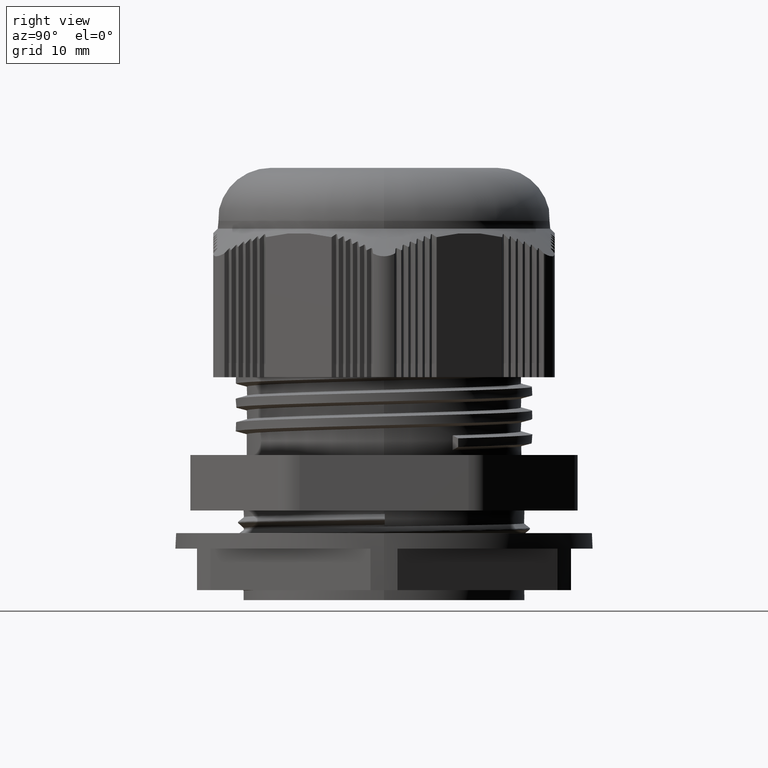
[diagram: clean part render]
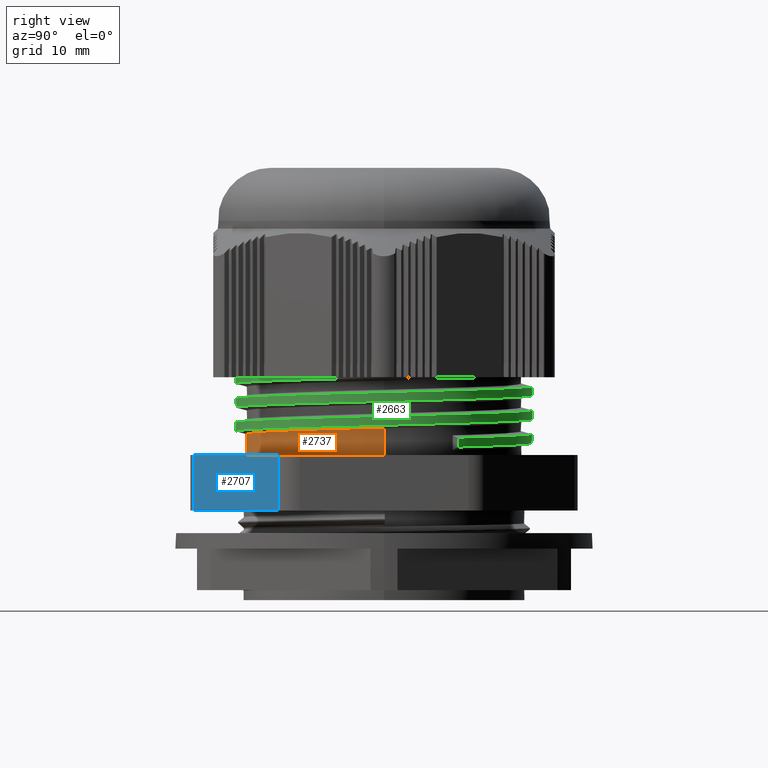
[diagram: same view with three faces highlighted in distinct colors, each labeled with its STEP entity id]
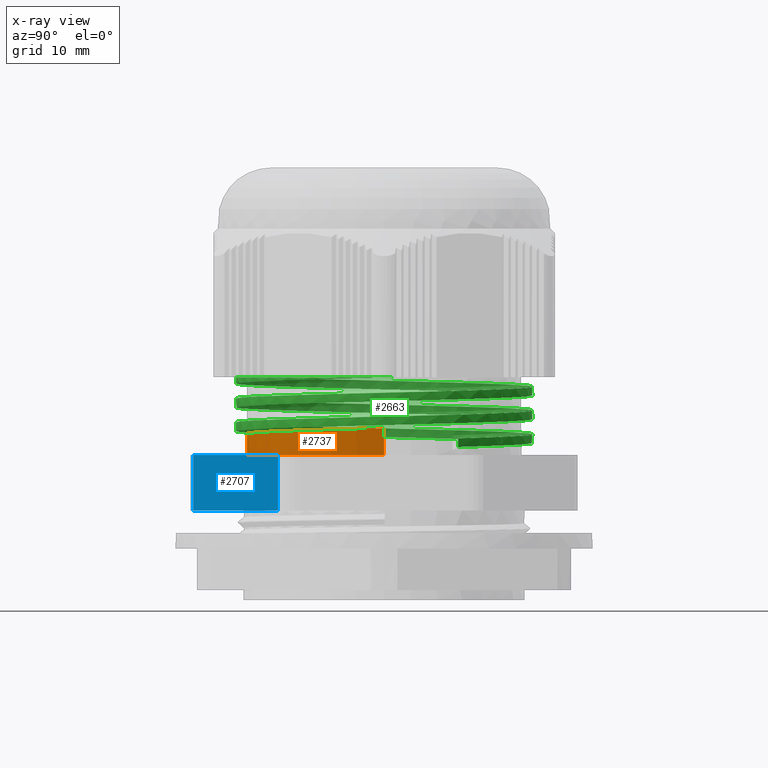
[diagram: x-ray of the same camera — body ghosted, the three highlighted faces saturated]
A machine part, right view with three faces highlighted in distinct colors.
The next image is the same camera in x-ray (body ghosted, the three faces saturated) — at least one of them is partly hidden behind the body in this view.
Their STEP definitions:

[orange] entity #2737 — the highlighted cylindrical surface (partial cylindrical patch) has radius 16.8413 mm, axis along (0, 0, -1).
#724 = EDGE_CURVE ( 'NONE', #21058, #21067, #8386, .T. ) ;
#733 = EDGE_CURVE ( 'NONE', #20887, #21045, #8423, .T. ) ;
#2575 = EDGE_CURVE ( 'NONE', #21058, #20887, #14877, .T. ) ;
#2696 = EDGE_CURVE ( 'NONE', #21067, #21045, #16213, .T. ) ;
#2737 = ADVANCED_FACE ( 'NONE', ( #16335 ), #16319, .T. ) ;
#3168 = EDGE_LOOP ( 'NONE', ( #19341, #19349, #19283, #19373 ) ) ;
#8352 = CARTESIAN_POINT ( 'NONE',  ( -654.4406167030414300, 330.9994562443066000, 0.3723463685303072300 ) ) ;
#8375 = DIRECTION ( 'NONE',  ( 0.0000000000000000000, 0.0000000000000000000, -1.000000000000000000 ) ) ;
#8386 = LINE ( 'NONE', #8352, #22763 ) ;
#8399 = DIRECTION ( 'NONE',  ( 0.0000000000000000000, 0.0000000000000000000, -1.000000000000000000 ) ) ;
#8401 = CARTESIAN_POINT ( 'NONE',  ( -688.1232154737675700, 330.9994562443066000, 0.3723463685303072300 ) ) ;
#8423 = LINE ( 'NONE', #8401, #22813 ) ;
#14877 =( BOUNDED_CURVE ( )  B_SPLINE_CURVE ( 2, ( #15925, #15886, #15905, #15932, #15916, #15924, #15912, #15899, #15917, #15910, #15933, #15887, #15934 ),
 .UNSPECIFIED., .F., .F. ) 
 B_SPLINE_CURVE_WITH_KNOTS ( ( 3, 2, 2, 2, 2, 2, 3 ),
 ( 0.0000000000000000000, 0.001788247828376605600, 0.01241998737011210600, 0.02305172691184761600, 0.03368346645358311800, 0.04431520599531861600, 0.05315869770868329700 ),
 .UNSPECIFIED. ) 
 CURVE ( )  GEOMETRIC_REPRESENTATION_ITEM ( )  RATIONAL_B_SPLINE_CURVE ( ( 0.9863048215266263500, 0.9917677555864871100, 1.000000000000000000, 0.9510565162951540900, 1.000000000000000000, 0.9510565162951540900, 1.000000000000000000, 0.9510565162951540900, 1.000000000000000000, 0.9510565162951540900, 1.000000000000000000, 0.9592887607086403300, 0.9863048215266616600 ) ) 
 REPRESENTATION_ITEM ( '' )  );
#15886 = CARTESIAN_POINT ( 'NONE',  ( -654.4406167030410900, 330.1168411432821000, 21.44927061568271000 ) ) ;
#15887 = CARTESIAN_POINT ( 'NONE',  ( -688.1232154737675700, 326.4868436745075000, 20.13711571569953000 ) ) ;
#15899 = CARTESIAN_POINT ( 'NONE',  ( -673.1329050822452000, 313.3884723561546900, 20.69560379291174000 ) ) ;
#15905 = CARTESIAN_POINT ( 'NONE',  ( -654.5328751032087700, 329.2390611001243900, 21.42571792811533300 ) ) ;
#15910 = CARTESIAN_POINT ( 'NONE',  ( -683.1308742486384100, 317.8398550238632700, 20.40355813883030200 ) ) ;
#15912 = CARTESIAN_POINT ( 'NONE',  ( -667.7804130576256500, 314.5261796572739900, 20.84162661995245000 ) ) ;
#15916 = CARTESIAN_POINT ( 'NONE',  ( -658.7663915958562500, 319.7304273747074600, 21.13367227403389800 ) ) ;
#15917 = CARTESIAN_POINT ( 'NONE',  ( -678.1318896654416900, 315.6141636900089200, 20.54958096587102300 ) ) ;
#15924 = CARTESIAN_POINT ( 'NONE',  ( -662.4279210330062100, 315.6638869583934500, 20.98764944699317400 ) ) ;
#15925 = CARTESIAN_POINT ( 'NONE',  ( -654.4406167030414300, 330.9994562443109200, 21.47349420748840700 ) ) ;
#15932 = CARTESIAN_POINT ( 'NONE',  ( -655.1048621587061700, 323.7969677910218100, 21.27969510107460800 ) ) ;
#15933 = CARTESIAN_POINT ( 'NONE',  ( -685.8669091888682500, 322.5788065516250600, 20.25753531178957100 ) ) ;
#15934 = CARTESIAN_POINT ( 'NONE',  ( -688.1232154737674600, 330.9994562443063700, 20.01326593708103700 ) ) ;
#16188 = AXIS2_PLACEMENT_3D ( 'NONE', #16305, #16300, #16302 ) ;
#16202 = AXIS2_PLACEMENT_3D ( 'NONE', #17160, #17175, #17135 ) ;
#16213 = CIRCLE ( 'NONE', #16202, 16.84129938536305100 ) ;
#16300 = DIRECTION ( 'NONE',  ( 0.0000000000000000000, 0.0000000000000000000, -1.000000000000000000 ) ) ;
#16302 = DIRECTION ( 'NONE',  ( -1.000000000000000000, 0.0000000000000000000, 0.0000000000000000000 ) ) ;
#16305 = CARTESIAN_POINT ( 'NONE',  ( -671.2819160884045000, 330.9994562443066000, 0.3723463685303072300 ) ) ;
#16319 = CYLINDRICAL_SURFACE ( 'NONE', #16188, 16.84129938536305100 ) ;
#16335 = FACE_OUTER_BOUND ( 'NONE', #3168, .T. ) ;
#17135 = DIRECTION ( 'NONE',  ( -1.000000000000000000, 0.0000000000000000000, 0.0000000000000000000 ) ) ;
#17160 = CARTESIAN_POINT ( 'NONE',  ( -671.2819160884045000, 330.9994562443066000, 18.18713126749812800 ) ) ;
#17175 = DIRECTION ( 'NONE',  ( 0.0000000000000000000, 0.0000000000000000000, -1.000000000000000000 ) ) ;
#18387 = CARTESIAN_POINT ( 'NONE',  ( -688.1232154737675700, 330.9994562443063700, 20.01326593708103700 ) ) ;
#19283 = ORIENTED_EDGE ( 'NONE', *, *, #733, .T. ) ;
#19341 = ORIENTED_EDGE ( 'NONE', *, *, #724, .F. ) ;
#19349 = ORIENTED_EDGE ( 'NONE', *, *, #2575, .T. ) ;
#19373 = ORIENTED_EDGE ( 'NONE', *, *, #2696, .F. ) ;
#20128 = CARTESIAN_POINT ( 'NONE',  ( -688.1232154737675700, 330.9994562443066000, 18.18713126749812800 ) ) ;
#20190 = CARTESIAN_POINT ( 'NONE',  ( -654.4406167030414300, 330.9994562443109200, 21.47349420748840700 ) ) ;
#20223 = CARTESIAN_POINT ( 'NONE',  ( -654.4406167030414300, 330.9994562443066000, 18.18713126749812800 ) ) ;
#20887 = VERTEX_POINT ( 'NONE', #18387 ) ;
#21045 = VERTEX_POINT ( 'NONE', #20128 ) ;
#21058 = VERTEX_POINT ( 'NONE', #20190 ) ;
#21067 = VERTEX_POINT ( 'NONE', #20223 ) ;
#22763 = VECTOR ( 'NONE', #8375, 1000.000000000000000 ) ;
#22813 = VECTOR ( 'NONE', #8399, 1000.000000000000000 ) ;

[blue] entity #2707 — the highlighted planar face has unit normal (0.5, -0.866, 0).
#605 = EDGE_CURVE ( 'NONE', #3395, #23344, #7986, .T. ) ;
#618 = EDGE_CURVE ( 'NONE', #23344, #23377, #7980, .T. ) ;
#699 = EDGE_CURVE ( 'NONE', #23377, #3413, #8313, .T. ) ;
#2671 = EDGE_CURVE ( 'NONE', #3395, #3413, #17044, .T. ) ;
#2707 = ADVANCED_FACE ( 'NONE', ( #17188 ), #17190, .T. ) ;
#3149 = EDGE_LOOP ( 'NONE', ( #18887, #18832, #18815, #18779 ) ) ;
#3395 = VERTEX_POINT ( 'NONE', #17713 ) ;
#3413 = VERTEX_POINT ( 'NONE', #17721 ) ;
#7964 = CARTESIAN_POINT ( 'NONE',  ( -651.8017514703900600, 317.9981757370482600, 11.37273267226454500 ) ) ;
#7967 = DIRECTION ( 'NONE',  ( -0.0000000000000000000, -0.0000000000000000000, -1.000000000000000000 ) ) ;
#7980 = LINE ( 'NONE', #7964, #22704 ) ;
#7983 = DIRECTION ( 'NONE',  ( -0.8660254037844352700, -0.5000000000000057700, 0.0000000000000000000 ) ) ;
#7986 = LINE ( 'NONE', #7997, #22718 ) ;
#7997 = CARTESIAN_POINT ( 'NONE',  ( -651.8017514703899500, 317.9981757370480300, 11.37273267226454500 ) ) ;
#8312 = CARTESIAN_POINT ( 'NONE',  ( -669.7625591963984600, 307.6284985615739600, 11.37273267226454500 ) ) ;
#8313 = LINE ( 'NONE', #8312, #22768 ) ;
#8332 = DIRECTION ( 'NONE',  ( 0.0000000000000000000, 0.0000000000000000000, 1.000000000000000000 ) ) ;
#16137 = VECTOR ( 'NONE', #17043, 1000.000000000000000 ) ;
#16225 = AXIS2_PLACEMENT_3D ( 'NONE', #17192, #17201, #17202 ) ;
#17043 = DIRECTION ( 'NONE',  ( -0.8660254037844387100, -0.4999999999999998900, -0.0000000000000000000 ) ) ;
#17044 = LINE ( 'NONE', #17078, #16137 ) ;
#17078 = CARTESIAN_POINT ( 'NONE',  ( -669.7625591963985700, 307.6284985615743600, 18.18713126749812800 ) ) ;
#17188 = FACE_OUTER_BOUND ( 'NONE', #3149, .T. ) ;
#17190 = PLANE ( 'NONE',  #16225 ) ;
#17192 = CARTESIAN_POINT ( 'NONE',  ( -669.7625591963985700, 307.6284985615743600, 11.37273267226454500 ) ) ;
#17201 = DIRECTION ( 'NONE',  ( 0.4999999999999998900, -0.8660254037844387100, 0.0000000000000000000 ) ) ;
#17202 = DIRECTION ( 'NONE',  ( 0.8660254037844387100, 0.4999999999999998900, 0.0000000000000000000 ) ) ;
#17713 = CARTESIAN_POINT ( 'NONE',  ( -651.8017514703900600, 317.9981757370482600, 18.18713126749812800 ) ) ;
#17721 = CARTESIAN_POINT ( 'NONE',  ( -669.7625591963985700, 307.6284985615741300, 18.18713126749812800 ) ) ;
#18779 = ORIENTED_EDGE ( 'NONE', *, *, #618, .F. ) ;
#18815 = ORIENTED_EDGE ( 'NONE', *, *, #699, .F. ) ;
#18832 = ORIENTED_EDGE ( 'NONE', *, *, #2671, .T. ) ;
#18887 = ORIENTED_EDGE ( 'NONE', *, *, #605, .F. ) ;
#20456 = CARTESIAN_POINT ( 'NONE',  ( -651.8017514703899500, 317.9981757370481400, 11.37273267226454500 ) ) ;
#20459 = CARTESIAN_POINT ( 'NONE',  ( -669.7625591963984600, 307.6284985615740200, 11.37273267226454500 ) ) ;
#22704 = VECTOR ( 'NONE', #7983, 1000.000000000000300 ) ;
#22718 = VECTOR ( 'NONE', #7967, 1000.000000000000000 ) ;
#22768 = VECTOR ( 'NONE', #8332, 1000.000000000000000 ) ;
#23344 = VERTEX_POINT ( 'NONE', #20456 ) ;
#23377 = VERTEX_POINT ( 'NONE', #20459 ) ;

[green] entity #2663 — the highlighted face is a freeform B-spline surface patch.
#2559 = EDGE_CURVE ( 'NONE', #3419, #3391, #14874, .T. ) ;
#2594 = EDGE_CURVE ( 'NONE', #3419, #3378, #5626, .T. ) ;
#2600 = EDGE_CURVE ( 'NONE', #3379, #3391, #16432, .T. ) ;
#2634 = EDGE_CURVE ( 'NONE', #3379, #3378, #14876, .T. ) ;
#2663 = ADVANCED_FACE ( 'NONE', ( #16686 ), #14873, .F. ) ;
#3077 = EDGE_LOOP ( 'NONE', ( #19332, #19394, #19393, #19400 ) ) ;
#3378 = VERTEX_POINT ( 'NONE', #17736 ) ;
#3379 = VERTEX_POINT ( 'NONE', #17696 ) ;
#3391 = VERTEX_POINT ( 'NONE', #17714 ) ;
#3419 = VERTEX_POINT ( 'NONE', #17708 ) ;
#5626 = B_SPLINE_CURVE_WITH_KNOTS ( 'NONE', 3,
 ( #16372, #16363, #16351, #16360, #16344, #16358, #16379, #16394, #16367, #16345, #16368, #16346, #16357, #16395, #16361, #16369, #16347, #16378, #16359, #16380, #16370, #16355, #16349, #16371, #16377, #16373, #16348, #16387, #16362, #16353, #16389, #16374, #16396, #16375, #16376, #16381, #16382, #16364, #16390, #16350, #16386, #16352 ),
 .UNSPECIFIED., .F., .F.,
 ( 4, 2, 2, 2, 2, 2, 2, 2, 2, 2, 2, 2, 2, 2, 2, 2, 2, 2, 2, 2, 4 ),
 ( 0.0000000000000000000, 0.001319045719818916300, 0.002638091439637832600, 0.005276182879275292300, 0.007914274318912752800, 0.009233320038731661700, 0.01055236575855057200, 0.01319045719818839200, 0.01582854863782621300, 0.01846664007746403500, 0.01978568579728294500, 0.02110473151710185200, 0.02638091439637724900, 0.02769996011619609700, 0.02901900583601494900, 0.03033805155583380000, 0.03165709727565265600, 0.03429518871529019900, 0.03561423443510897800, 0.03693328015492775000, 0.04220946303420264300 ),
 .UNSPECIFIED. ) ;
#14873 =( BOUNDED_SURFACE ( )  B_SPLINE_SURFACE ( 1, 2, ( 
 ( #16664, #16690, #16687, #16710, #16712, #16667, #16691, #16701, #16683, #16703, #16668, #16677, #16675, #16669, #16704, #16707, #16678, #16679, #16682, #16680, #16759, #16718, #16721, #16720, #16769, #16776, #16774, #16750, #16754, #16746, #16742, #16731, #16773, #16763, #16755, #16764, #16771, #16751, #16744, #16743, #16772, #16756, #16747, #16725, #16726, #16736, #16760, #16761, #16752, #16727, #16745, #16757, #16748, #16762, #16741, #16766, #16737, #16716, #16775, #16732, #16753, #16713, #16765, #16749, #16767, #16758, #16714, #16768, #16770, #16715, #16738, #16717, #16722, #16719, #16723, #16739, #16740 ),
 ( #16724, #16733, #16728, #16729, #16730, #16734, #16735, #16836, #16801, #16806, #16823, #16782, #16785, #16784, #16833, #16840, #16838, #16814, #16818, #16810, #16807, #16795, #16837, #16827, #16819, #16828, #16835, #16815, #16808, #16809, #16839, #16820, #16811, #16789, #16790, #16800, #16824, #16825, #16816, #16791, #16812, #16821, #16781, #16783, #16792, #16796, #16817, #16786, #16793, #16813, #16777, #16822, #16826, #16829, #16794, #16831, #16830, #16787, #16797, #16788, #16805, #16832, #16834, #16780, #16778, #16798, #16799, #16779, #16802, #16803, #16804, #16867, #16879, #16870, #16856, #16893, #16841 ) ),
 .UNSPECIFIED., .F., .F., .T. ) 
 B_SPLINE_SURFACE_WITH_KNOTS ( ( 2, 2 ),
 ( 3, 2, 2, 2, 2, 2, 2, 2, 2, 2, 2, 2, 2, 2, 2, 2, 2, 2, 2, 2, 2, 2, 2, 2, 2, 2, 2, 2, 2, 2, 2, 2, 2, 2, 2, 2, 2, 2, 3 ),
 ( 0.0000000000000000000, 1.000000000000000000 ),
 ( 0.0000000000000000000, 0.02500000000000000100, 0.05000000000000000300, 0.07499999999999999700, 0.1000000000000000100, 0.1250000000000000000, 0.1499999999999999900, 0.1749999999999999900, 0.2000000000000000100, 0.2250000000000000100, 0.2500000000000000000, 0.2750000000000000200, 0.2999999999999999900, 0.3250000000000000100, 0.3499999999999999800, 0.3750000000000000000, 0.4000000000000000200, 0.4249999999999999900, 0.4500000000000000100, 0.4749999999999999800, 0.5000000000000000000, 0.5250000000000000200, 0.5500000000000000400, 0.5749999999999999600, 0.5999999999999999800, 0.6250000000000000000, 0.6500000000000000200, 0.6750000000000000400, 0.6999999999999999600, 0.7249999999999999800, 0.7500000000000000000, 0.7750000000000000200, 0.8000000000000000400, 0.8249999999999999600, 0.8499999999999999800, 0.8750000000000000000, 0.9000000000000000200, 0.9250000000000000400, 0.9499999999999999600 ),
 .UNSPECIFIED. ) 
 GEOMETRIC_REPRESENTATION_ITEM ( )  RATIONAL_B_SPLINE_SURFACE ( (
 ( 1.000000000000000000, 0.9510565162951539800, 1.000000000000000000, 0.9510565162951539800, 1.000000000000000000, 0.9510565162951539800, 1.000000000000000000, 0.9510565162951539800, 1.000000000000000000, 0.9510565162951539800, 1.000000000000000000, 0.9510565162951539800, 1.000000000000000000, 0.9510565162951539800, 1.000000000000000000, 0.9510565162951539800, 1.000000000000000000, 0.9510565162951539800, 1.000000000000000000, 0.9510565162951539800, 1.000000000000000000, 0.9510565162951539800, 1.000000000000000000, 0.9510565162951539800, 1.000000000000000000, 0.9510565162951539800, 1.000000000000000000, 0.9510565162951539800, 1.000000000000000000, 0.9510565162951539800, 1.000000000000000000, 0.9510565162951539800, 1.000000000000000000, 0.9510565162951539800, 1.000000000000000000, 0.9510565162951539800, 1.000000000000000000, 0.9510565162951539800, 1.000000000000000000, 0.9510565162951539800, 1.000000000000000000, 0.9510565162951539800, 1.000000000000000000, 0.9510565162951539800, 1.000000000000000000, 0.9510565162951539800, 1.000000000000000000, 0.9510565162951539800, 1.000000000000000000, 0.9510565162951539800, 1.000000000000000000, 0.9510565162951539800, 1.000000000000000000, 0.9510565162951539800, 1.000000000000000000, 0.9510565162951539800, 1.000000000000000000, 0.9510565162951539800, 1.000000000000000000, 0.9510565162951539800, 1.000000000000000000, 0.9510565162951539800, 1.000000000000000000, 0.9510565162951539800, 1.000000000000000000, 0.9510565162951539800, 1.000000000000000000, 0.9510565162951539800, 1.000000000000000000, 0.9510565162951539800, 1.000000000000000000, 0.9510565162951539800, 1.000000000000000000, 0.9510565162951539800, 1.000000000000000000, 0.9510565162951539800, 1.000000000000000000),
 ( 1.000000000000000000, 0.9510565162951539800, 1.000000000000000000, 0.9510565162951539800, 1.000000000000000000, 0.9510565162951539800, 1.000000000000000000, 0.9510565162951539800, 1.000000000000000000, 0.9510565162951539800, 1.000000000000000000, 0.9510565162951539800, 1.000000000000000000, 0.9510565162951539800, 1.000000000000000000, 0.9510565162951539800, 1.000000000000000000, 0.9510565162951539800, 1.000000000000000000, 0.9510565162951539800, 1.000000000000000000, 0.9510565162951539800, 1.000000000000000000, 0.9510565162951539800, 1.000000000000000000, 0.9510565162951539800, 1.000000000000000000, 0.9510565162951539800, 1.000000000000000000, 0.9510565162951539800, 1.000000000000000000, 0.9510565162951539800, 1.000000000000000000, 0.9510565162951539800, 1.000000000000000000, 0.9510565162951539800, 1.000000000000000000, 0.9510565162951539800, 1.000000000000000000, 0.9510565162951539800, 1.000000000000000000, 0.9510565162951539800, 1.000000000000000000, 0.9510565162951539800, 1.000000000000000000, 0.9510565162951539800, 1.000000000000000000, 0.9510565162951539800, 1.000000000000000000, 0.9510565162951539800, 1.000000000000000000, 0.9510565162951539800, 1.000000000000000000, 0.9510565162951539800, 1.000000000000000000, 0.9510565162951539800, 1.000000000000000000, 0.9510565162951539800, 1.000000000000000000, 0.9510565162951539800, 1.000000000000000000, 0.9510565162951539800, 1.000000000000000000, 0.9510565162951539800, 1.000000000000000000, 0.9510565162951539800, 1.000000000000000000, 0.9510565162951539800, 1.000000000000000000, 0.9510565162951539800, 1.000000000000000000, 0.9510565162951539800, 1.000000000000000000, 0.9510565162951539800, 1.000000000000000000, 0.9510565162951539800, 1.000000000000000000) ) ) 
 REPRESENTATION_ITEM ( '' )  SURFACE ( )  );
#14874 =( BOUNDED_CURVE ( )  B_SPLINE_CURVE ( 2, ( #15813, #15826, #15811, #15780, #15808, #15831, #15836, #15801, #15820, #15789, #15786, #15835, #15803, #15804, #15805, #15812, #15795, #15809, #15797, #15827, #15790, #15824, #15799, #15828, #15784, #15816, #15793, #15817, #15814, #15791, #15818, #15785, #15819, #15821, #15800, #15825, #15832, #15781, #15792, #15829, #15794, #15822, #15833, #15834, #15837, #15798, #15782, #15783, #15802, #15853, #15850, #15883, #15872 ),
 .UNSPECIFIED., .F., .T. ) 
 B_SPLINE_CURVE_WITH_KNOTS ( ( 3, 2, 2, 2, 2, 2, 2, 2, 2, 2, 2, 2, 2, 2, 2, 2, 2, 2, 2, 2, 2, 2, 2, 2, 2, 2, 3 ),
 ( 0.3087358529763428200, 0.3249999999999999600, 0.3499999999999999800, 0.3750000000000000000, 0.3999999999999999100, 0.4249999999999999300, 0.4499999999999999600, 0.4749999999999999800, 0.4999999999999999400, 0.5249999999999999100, 0.5499999999999999300, 0.5749999999999999600, 0.5999999999999999800, 0.6250000000000000000, 0.6499999999999999100, 0.6749999999999999300, 0.6999999999999999600, 0.7249999999999999800, 0.7500000000000000000, 0.7749999999999999100, 0.7999999999999999300, 0.8249999999999999600, 0.8500000000000000900, 0.8750000000000000000, 0.8999999999999999100, 0.9250000000000000400, 0.9499999999999999600 ),
 .UNSPECIFIED. ) 
 CURVE ( )  GEOMETRIC_REPRESENTATION_ITEM ( )  RATIONAL_B_SPLINE_CURVE ( ( 0.9777473639707057200, 0.9681590394069766700, 1.000000000000000000, 0.9510565162951539800, 1.000000000000000000, 0.9510565162951539800, 1.000000000000000000, 0.9510565162951539800, 1.000000000000000000, 0.9510565162951539800, 1.000000000000000000, 0.9510565162951539800, 1.000000000000000000, 0.9510565162951539800, 1.000000000000000000, 0.9510565162951539800, 1.000000000000000000, 0.9510565162951539800, 1.000000000000000000, 0.9510565162951539800, 1.000000000000000000, 0.9510565162951539800, 1.000000000000000000, 0.9510565162951539800, 1.000000000000000000, 0.9510565162951539800, 1.000000000000000000, 0.9510565162951539800, 1.000000000000000000, 0.9510565162951539800, 1.000000000000000000, 0.9510565162951539800, 1.000000000000000000, 0.9510565162951539800, 1.000000000000000000, 0.9510565162951539800, 1.000000000000000000, 0.9510565162951539800, 1.000000000000000000, 0.9510565162951539800, 1.000000000000000000, 0.9510565162951539800, 1.000000000000000000, 0.9510565162951539800, 1.000000000000000000, 0.9510565162951539800, 1.000000000000000000, 0.9510565162951539800, 1.000000000000000000, 0.9510565162951539800, 1.000000000000000000, 0.9510565162951539800, 1.000000000000000000 ) ) 
 REPRESENTATION_ITEM ( '' )  );
#14876 =( BOUNDED_CURVE ( )  B_SPLINE_CURVE ( 2, ( #16546, #16547, #16497, #16520, #16521, #16519, #16522, #16548, #16516, #16507, #16506, #16525, #16526, #16500, #16495, #16527, #16528, #16501, #16502, #16504, #16505, #16533, #16512, #16569, #16586, #16559, #16562, #16580, #16605, #16590, #16581, #16591, #16563, #16600, #16582, #16560, #16564, #16557, #16576, #16584, #16577, #16595, #16602, #16551, #16565, #16594, #16566, #16575, #16596, #16597, #16607, #16603, #16558, #16587, #16567, #16604, #16552, #16588, #16550, #16568, #16578 ),
 .UNSPECIFIED., .F., .T. ) 
 B_SPLINE_CURVE_WITH_KNOTS ( ( 3, 2, 2, 2, 2, 2, 2, 2, 2, 2, 2, 2, 2, 2, 2, 2, 2, 2, 2, 2, 2, 2, 2, 2, 2, 2, 2, 2, 2, 2, 3 ),
 ( 0.0000000000000000000, 0.02500000000000000100, 0.05000000000000000300, 0.07499999999999999700, 0.1000000000000000100, 0.1250000000000000000, 0.1499999999999999900, 0.1749999999999999900, 0.2000000000000000100, 0.2250000000000000100, 0.2500000000000000000, 0.2750000000000000200, 0.2999999999999999900, 0.3250000000000000100, 0.3499999999999999800, 0.3750000000000000000, 0.4000000000000000200, 0.4249999999999999900, 0.4500000000000000100, 0.4749999999999999800, 0.5000000000000000000, 0.5250000000000000200, 0.5500000000000000400, 0.5749999999999999600, 0.5999999999999999800, 0.6250000000000000000, 0.6500000000000000200, 0.6750000000000000400, 0.6999999999999999600, 0.7249999999999999800, 0.7329547662968486400 ),
 .UNSPECIFIED. ) 
 CURVE ( )  GEOMETRIC_REPRESENTATION_ITEM ( )  RATIONAL_B_SPLINE_CURVE ( ( 1.000000000000000000, 0.9510565162951539800, 1.000000000000000000, 0.9510565162951539800, 1.000000000000000000, 0.9510565162951539800, 1.000000000000000000, 0.9510565162951539800, 1.000000000000000000, 0.9510565162951539800, 1.000000000000000000, 0.9510565162951539800, 1.000000000000000000, 0.9510565162951539800, 1.000000000000000000, 0.9510565162951539800, 1.000000000000000000, 0.9510565162951539800, 1.000000000000000000, 0.9510565162951539800, 1.000000000000000000, 0.9510565162951539800, 1.000000000000000000, 0.9510565162951539800, 1.000000000000000000, 0.9510565162951539800, 1.000000000000000000, 0.9510565162951539800, 1.000000000000000000, 0.9510565162951539800, 1.000000000000000000, 0.9510565162951539800, 1.000000000000000000, 0.9510565162951539800, 1.000000000000000000, 0.9510565162951539800, 1.000000000000000000, 0.9510565162951539800, 1.000000000000000000, 0.9510565162951539800, 1.000000000000000000, 0.9510565162951539800, 1.000000000000000000, 0.9510565162951539800, 1.000000000000000000, 0.9510565162951539800, 1.000000000000000000, 0.9510565162951539800, 1.000000000000000000, 0.9510565162951539800, 1.000000000000000000, 0.9510565162951539800, 1.000000000000000000, 0.9510565162951539800, 1.000000000000000000, 0.9510565162951539800, 1.000000000000000000, 0.9510565162951539800, 1.000000000000000000, 0.9844266410149731300, 0.9787638765245716400 ) ) 
 REPRESENTATION_ITEM ( '' )  );
#15780 = CARTESIAN_POINT ( 'NONE',  ( -690.0046458202521100, 327.0198171874278600, 27.38656916531396800 ) ) ;
#15781 = CARTESIAN_POINT ( 'NONE',  ( -661.7114127626271100, 314.4228582300535800, 22.42179304592951500 ) ) ;
#15782 = CARTESIAN_POINT ( 'NONE',  ( -684.8102575919106100, 343.1804296467055900, 21.10758760256303600 ) ) ;
#15783 = CARTESIAN_POINT ( 'NONE',  ( -680.8524194141812100, 347.5760542585594000, 20.96156477552234100 ) ) ;
#15784 = CARTESIAN_POINT ( 'NONE',  ( -689.3863707949459500, 332.9023111111399100, 24.32008979745887000 ) ) ;
#15785 = CARTESIAN_POINT ( 'NONE',  ( -658.4740827013311000, 345.2239962918379800, 23.29793000817382200 ) ) ;
#15786 = CARTESIAN_POINT ( 'NONE',  ( -663.8776093895260100, 347.6298013752524400, 26.36440937602895200 ) ) ;
#15789 = CARTESIAN_POINT ( 'NONE',  ( -669.2811360777211600, 350.0356064586674700, 26.51043220306965900 ) ) ;
#15790 = CARTESIAN_POINT ( 'NONE',  ( -678.6862227872833300, 314.3691111133606500, 24.90418110562174900 ) ) ;
#15791 = CARTESIAN_POINT ( 'NONE',  ( -669.2811360777211600, 350.0356064586674700, 23.58997566225525600 ) ) ;
#15792 = CARTESIAN_POINT ( 'NONE',  ( -667.4970544308578200, 313.1930821299996500, 22.27577021888878800 ) ) ;
#15793 = CARTESIAN_POINT ( 'NONE',  ( -684.8102575919106100, 343.1804296467055900, 24.02804414337743200 ) ) ;
#15794 = CARTESIAN_POINT ( 'NONE',  ( -678.6862227872833300, 314.3691111133606500, 21.98372456480735000 ) ) ;
#15795 = CARTESIAN_POINT ( 'NONE',  ( -657.7535745848986200, 318.8184828419075500, 25.48827241378462800 ) ) ;
#15797 = CARTESIAN_POINT ( 'NONE',  ( -667.4970544308578200, 313.1930821299996500, 25.19622675970319400 ) ) ;
#15798 = CARTESIAN_POINT ( 'NONE',  ( -688.7680957696386500, 338.7848050348512700, 21.25361042960377100 ) ) ;
#15799 = CARTESIAN_POINT ( 'NONE',  ( -687.0471976478650000, 321.8973666921016800, 24.61213545154030800 ) ) ;
#15800 = CARTESIAN_POINT ( 'NONE',  ( -653.1774613818632800, 329.0966013774734100, 22.85986152705167000 ) ) ;
#15801 = CARTESIAN_POINT ( 'NONE',  ( -680.8524194141812100, 347.5760542585594000, 26.80247785715109300 ) ) ;
#15802 = CARTESIAN_POINT ( 'NONE',  ( -675.0667777459516400, 348.8058303586134900, 20.81554194848158800 ) ) ;
#15803 = CARTESIAN_POINT ( 'NONE',  ( -655.5166345289440000, 340.1015457965114600, 26.07236372194751100 ) ) ;
#15804 = CARTESIAN_POINT ( 'NONE',  ( -652.5591863565562100, 334.9790953011851700, 25.92634089490678700 ) ) ;
#15805 = CARTESIAN_POINT ( 'NONE',  ( -653.1774613818632800, 329.0966013774734100, 25.78031806786606900 ) ) ;
#15808 = CARTESIAN_POINT ( 'NONE',  ( -689.3863707949459500, 332.9023111111399100, 27.24054633827326900 ) ) ;
#15809 = CARTESIAN_POINT ( 'NONE',  ( -661.7114127626271100, 314.4228582300535800, 25.34224958674391800 ) ) ;
#15811 = CARTESIAN_POINT ( 'NONE',  ( -687.0471976478650000, 321.8973666921016800, 27.53259199235471400 ) ) ;
#15812 = CARTESIAN_POINT ( 'NONE',  ( -653.7957364071696700, 323.2141074537617000, 25.63429524082530300 ) ) ;
#15813 = CARTESIAN_POINT ( 'NONE',  ( -682.1200689096889400, 316.3732270553489900, 27.72358769562405800 ) ) ;
#15814 = CARTESIAN_POINT ( 'NONE',  ( -675.0667777459516400, 348.8058303586134900, 23.73599848929598700 ) ) ;
#15816 = CARTESIAN_POINT ( 'NONE',  ( -688.7680957696386500, 338.7848050348512700, 24.17406697041812100 ) ) ;
#15817 = CARTESIAN_POINT ( 'NONE',  ( -680.8524194141812100, 347.5760542585594000, 23.88202131633669400 ) ) ;
#15818 = CARTESIAN_POINT ( 'NONE',  ( -663.8776093895260100, 347.6298013752524400, 23.44395283521454900 ) ) ;
#15819 = CARTESIAN_POINT ( 'NONE',  ( -655.5166345289440000, 340.1015457965114600, 23.15190718113310800 ) ) ;
#15820 = CARTESIAN_POINT ( 'NONE',  ( -675.0667777459516400, 348.8058303586134900, 26.65645503011039000 ) ) ;
#15821 = CARTESIAN_POINT ( 'NONE',  ( -652.5591863565562100, 334.9790953011851700, 23.00588435409238400 ) ) ;
#15822 = CARTESIAN_POINT ( 'NONE',  ( -684.0897494754780200, 316.7749161967758500, 21.83770173776659400 ) ) ;
#15824 = CARTESIAN_POINT ( 'NONE',  ( -684.0897494754780200, 316.7749161967758500, 24.75815827858105000 ) ) ;
#15825 = CARTESIAN_POINT ( 'NONE',  ( -653.7957364071696700, 323.2141074537617000, 22.71383870001095300 ) ) ;
#15826 = CARTESIAN_POINT ( 'NONE',  ( -685.1571704824626700, 318.6237436139395500, 27.62591133179493900 ) ) ;
#15827 = CARTESIAN_POINT ( 'NONE',  ( -673.2826960990871600, 311.9633060299461800, 25.05020393266248400 ) ) ;
#15828 = CARTESIAN_POINT ( 'NONE',  ( -690.0046458202521100, 327.0198171874278600, 24.46611262449960800 ) ) ;
#15829 = CARTESIAN_POINT ( 'NONE',  ( -673.2826960990871600, 311.9633060299461800, 22.12974739184801700 ) ) ;
#15831 = CARTESIAN_POINT ( 'NONE',  ( -688.7680957696386500, 338.7848050348512700, 27.09452351123252400 ) ) ;
#15832 = CARTESIAN_POINT ( 'NONE',  ( -657.7535745848986200, 318.8184828419075500, 22.56781587297022900 ) ) ;
#15833 = CARTESIAN_POINT ( 'NONE',  ( -687.0471976478650000, 321.8973666921016800, 21.69167891072591200 ) ) ;
#15834 = CARTESIAN_POINT ( 'NONE',  ( -690.0046458202521100, 327.0198171874278600, 21.54565608368515900 ) ) ;
#15835 = CARTESIAN_POINT ( 'NONE',  ( -658.4740827013311000, 345.2239962918379800, 26.21838654898822100 ) ) ;
#15836 = CARTESIAN_POINT ( 'NONE',  ( -684.8102575919106100, 343.1804296467055900, 26.94850068419182800 ) ) ;
#15837 = CARTESIAN_POINT ( 'NONE',  ( -689.3863707949459500, 332.9023111111399100, 21.39963325664446700 ) ) ;
#15850 = CARTESIAN_POINT ( 'NONE',  ( -663.8776093895260100, 347.6298013752524400, 20.52349629440016400 ) ) ;
#15853 = CARTESIAN_POINT ( 'NONE',  ( -669.2811360777211600, 350.0356064586674700, 20.66951912144084600 ) ) ;
#15872 = CARTESIAN_POINT ( 'NONE',  ( -655.5166345289440000, 340.1015457965114600, 20.23145064031870900 ) ) ;
#15883 = CARTESIAN_POINT ( 'NONE',  ( -658.4740827013311000, 345.2239962918379800, 20.37747346735941500 ) ) ;
#16098 = VECTOR ( 'NONE', #16410, 1000.000000000000000 ) ;
#16344 = CARTESIAN_POINT ( 'NONE',  ( -680.2797967444404300, 315.1683910324007900, 27.72358769562345400 ) ) ;
#16345 = CARTESIAN_POINT ( 'NONE',  ( -674.5678280119713000, 313.0889144578798700, 27.72358769562344700 ) ) ;
#16346 = CARTESIAN_POINT ( 'NONE',  ( -673.2660084285774900, 312.8984412420669500, 27.72358769562344700 ) ) ;
#16347 = CARTESIAN_POINT ( 'NONE',  ( -668.0475769381250800, 313.0636697221016200, 27.72358769562345100 ) ) ;
#16348 = CARTESIAN_POINT ( 'NONE',  ( -657.6102672522396200, 318.9715260326186700, 27.72358769562344300 ) ) ;
#16349 = CARTESIAN_POINT ( 'NONE',  ( -662.7179701241653900, 314.9294958913803300, 27.72358769562344000 ) ) ;
#16350 = CARTESIAN_POINT ( 'NONE',  ( -653.0800256339254000, 329.2253908759807900, 27.72358769562344300 ) ) ;
#16351 = CARTESIAN_POINT ( 'NONE',  ( -681.4035661980141200, 315.8621615039870700, 27.72358769562344700 ) ) ;
#16352 = CARTESIAN_POINT ( 'NONE',  ( -653.1587604807894000, 332.7150808208405700, 27.72358769562344300 ) ) ;
#16353 = CARTESIAN_POINT ( 'NONE',  ( -656.2625762706087500, 320.7036107788104000, 27.72358769562344300 ) ) ;
#16355 = CARTESIAN_POINT ( 'NONE',  ( -663.1098113503856000, 314.7267793544915500, 27.72358769562344300 ) ) ;
#16357 = CARTESIAN_POINT ( 'NONE',  ( -672.8323623547404400, 312.8562150385999400, 27.72358769562344000 ) ) ;
#16358 = CARTESIAN_POINT ( 'NONE',  ( -679.1206046562904200, 314.5459921982493400, 27.72358769562344700 ) ) ;
#16359 = CARTESIAN_POINT ( 'NONE',  ( -665.5167513887087100, 313.7104216594016700, 27.72358769562344700 ) ) ;
#16360 = CARTESIAN_POINT ( 'NONE',  ( -680.6609041230231000, 315.3911226867754700, 27.72358769562344300 ) ) ;
#16361 = CARTESIAN_POINT ( 'NONE',  ( -670.6621803925600000, 312.7849255047359000, 27.72358769562344300 ) ) ;
#16362 = CARTESIAN_POINT ( 'NONE',  ( -656.7765211013282900, 319.9913447495634400, 27.72358769562344700 ) ) ;
#16363 = CARTESIAN_POINT ( 'NONE',  ( -681.7661917604929200, 316.1110012572025900, 27.72358769562345100 ) ) ;
#16364 = CARTESIAN_POINT ( 'NONE',  ( -653.6000340224630900, 326.6479617114284800, 27.72358769562345100 ) ) ;
#16367 = CARTESIAN_POINT ( 'NONE',  ( -675.8566574824486700, 313.3576244915532800, 27.72358769562344700 ) ) ;
#16368 = CARTESIAN_POINT ( 'NONE',  ( -674.1328582614442000, 313.0145877362629100, 27.72358769562345100 ) ) ;
#16369 = CARTESIAN_POINT ( 'NONE',  ( -668.9232469607131900, 312.9276582612186500, 27.72358769562344700 ) ) ;
#16370 = CARTESIAN_POINT ( 'NONE',  ( -663.9004659856365200, 314.3532103194797900, 27.72358769562344700 ) ) ;
#16371 = CARTESIAN_POINT ( 'NONE',  ( -660.8066221299967500, 316.0080285914149800, 27.72358769562344300 ) ) ;
#16372 = CARTESIAN_POINT ( 'NONE',  ( -682.1200689096889400, 316.3732270553489900, 27.72358769562405800 ) ) ;
#16373 = CARTESIAN_POINT ( 'NONE',  ( -657.9058823130798100, 318.6436424919662600, 27.72358769562344300 ) ) ;
#16374 = CARTESIAN_POINT ( 'NONE',  ( -655.5567579785682700, 321.8177270209861300, 27.72358769562343300 ) ) ;
#16375 = CARTESIAN_POINT ( 'NONE',  ( -654.7372668441470300, 323.3558326959757800, 27.72358769562344300 ) ) ;
#16376 = CARTESIAN_POINT ( 'NONE',  ( -654.3919602657083500, 324.1526155411465900, 27.72358769562344300 ) ) ;
#16377 = CARTESIAN_POINT ( 'NONE',  ( -659.4319042856954000, 317.0694248031193800, 27.72358769562345800 ) ) ;
#16378 = CARTESIAN_POINT ( 'NONE',  ( -666.3470758271765800, 313.4552053482068500, 27.72358769562345800 ) ) ;
#16379 = CARTESIAN_POINT ( 'NONE',  ( -678.3258888772232900, 314.1908667057118700, 27.72358769562344300 ) ) ;
#16380 = CARTESIAN_POINT ( 'NONE',  ( -664.3008278087926300, 314.1814459783890900, 27.72358769562344300 ) ) ;
#16381 = CARTESIAN_POINT ( 'NONE',  ( -653.9597872864283100, 325.3847064508078100, 27.72358769562344300 ) ) ;
#16382 = CARTESIAN_POINT ( 'NONE',  ( -653.8300813864758500, 325.8015794085122300, 27.72358769562344700 ) ) ;
#16386 = CARTESIAN_POINT ( 'NONE',  ( -652.9927244296948200, 330.9611439563207700, 27.72358769562344300 ) ) ;
#16387 = CARTESIAN_POINT ( 'NONE',  ( -657.0460559884583100, 319.6449252416009600, 27.72358769562344300 ) ) ;
#16389 = CARTESIAN_POINT ( 'NONE',  ( -656.0174859012388400, 321.0706134028238200, 27.72358769562344300 ) ) ;
#16390 = CARTESIAN_POINT ( 'NONE',  ( -653.4997407640121300, 327.0779926403797000, 27.72358769562344700 ) ) ;
#16394 = CARTESIAN_POINT ( 'NONE',  ( -676.6939150807604600, 313.5966834240544500, 27.72358769562343300 ) ) ;
#16395 = CARTESIAN_POINT ( 'NONE',  ( -671.5307724990825600, 312.7762293021985400, 27.72358769562343600 ) ) ;
#16396 = CARTESIAN_POINT ( 'NONE',  ( -655.3411094461049500, 322.1976163154668000, 27.72358769562344300 ) ) ;
#16410 = DIRECTION ( 'NONE',  ( -0.0000000000000000000, 0.0000000000000000000, 1.000000000000000000 ) ) ;
#16424 = CARTESIAN_POINT ( 'NONE',  ( -655.5166345289440000, 340.1015457965114000, 20.42708413322903400 ) ) ;
#16432 = LINE ( 'NONE', #16424, #16098 ) ;
#16495 = CARTESIAN_POINT ( 'NONE',  ( -667.4970544308578200, 313.1930821299996500, 21.20680914005168600 ) ) ;
#16497 = CARTESIAN_POINT ( 'NONE',  ( -663.8776093895260100, 347.6298013752524400, 19.45453521556304800 ) ) ;
#16500 = CARTESIAN_POINT ( 'NONE',  ( -673.2826960990871600, 311.9633060299461800, 21.06078631301094000 ) ) ;
#16501 = CARTESIAN_POINT ( 'NONE',  ( -653.7957364071696700, 323.2141074537617000, 21.64487762117385800 ) ) ;
#16502 = CARTESIAN_POINT ( 'NONE',  ( -653.1774613818632800, 329.0966013774734100, 21.79090044821456500 ) ) ;
#16504 = CARTESIAN_POINT ( 'NONE',  ( -652.5591863565562100, 334.9790953011851700, 21.93692327525530000 ) ) ;
#16505 = CARTESIAN_POINT ( 'NONE',  ( -655.5166345289440000, 340.1015457965114600, 22.08294610229600300 ) ) ;
#16506 = CARTESIAN_POINT ( 'NONE',  ( -687.0471976478650000, 321.8973666921016800, 20.62271783188881000 ) ) ;
#16507 = CARTESIAN_POINT ( 'NONE',  ( -690.0046458202521100, 327.0198171874278600, 20.47669500484806800 ) ) ;
#16512 = CARTESIAN_POINT ( 'NONE',  ( -663.8776093895260100, 347.6298013752524400, 22.37499175637744400 ) ) ;
#16516 = CARTESIAN_POINT ( 'NONE',  ( -689.3863707949459500, 332.9023111111399100, 20.33067217780737200 ) ) ;
#16519 = CARTESIAN_POINT ( 'NONE',  ( -680.8524194141812100, 347.5760542585594000, 19.89260369668518500 ) ) ;
#16520 = CARTESIAN_POINT ( 'NONE',  ( -669.2811360777211600, 350.0356064586674700, 19.60055804260371900 ) ) ;
#16521 = CARTESIAN_POINT ( 'NONE',  ( -675.0667777459516400, 348.8058303586134900, 19.74658086964450000 ) ) ;
#16522 = CARTESIAN_POINT ( 'NONE',  ( -684.8102575919106100, 343.1804296467055900, 20.03862652372592400 ) ) ;
#16525 = CARTESIAN_POINT ( 'NONE',  ( -684.0897494754780200, 316.7749161967758500, 20.76874065892950600 ) ) ;
#16526 = CARTESIAN_POINT ( 'NONE',  ( -678.6862227872833300, 314.3691111133606500, 20.91476348597024800 ) ) ;
#16527 = CARTESIAN_POINT ( 'NONE',  ( -661.7114127626271100, 314.4228582300535800, 21.35283196709243100 ) ) ;
#16528 = CARTESIAN_POINT ( 'NONE',  ( -657.7535745848986200, 318.8184828419075500, 21.49885479413312300 ) ) ;
#16533 = CARTESIAN_POINT ( 'NONE',  ( -658.4740827013311000, 345.2239962918379800, 22.22896892933673000 ) ) ;
#16546 = CARTESIAN_POINT ( 'NONE',  ( -655.5166345289440000, 340.1015457965114600, 19.16248956148160700 ) ) ;
#16547 = CARTESIAN_POINT ( 'NONE',  ( -658.4740827013311000, 345.2239962918379800, 19.30851238852227800 ) ) ;
#16548 = CARTESIAN_POINT ( 'NONE',  ( -688.7680957696386500, 338.7848050348512700, 20.18464935076663000 ) ) ;
#16550 = CARTESIAN_POINT ( 'NONE',  ( -653.1774613818632800, 329.0966013774734100, 27.63181352984337700 ) ) ;
#16551 = CARTESIAN_POINT ( 'NONE',  ( -669.2811360777211600, 350.0356064586674700, 25.44147112423257100 ) ) ;
#16552 = CARTESIAN_POINT ( 'NONE',  ( -657.7535745848986200, 318.8184828419075500, 27.33976787576192500 ) ) ;
#16557 = CARTESIAN_POINT ( 'NONE',  ( -653.7957364071696700, 323.2141074537617000, 24.56533416198821500 ) ) ;
#16558 = CARTESIAN_POINT ( 'NONE',  ( -678.6862227872833300, 314.3691111133606500, 26.75567656759904300 ) ) ;
#16559 = CARTESIAN_POINT ( 'NONE',  ( -680.8524194141812100, 347.5760542585594000, 22.81306023749960900 ) ) ;
#16560 = CARTESIAN_POINT ( 'NONE',  ( -661.7114127626271100, 314.4228582300535800, 24.27328850790678100 ) ) ;
#16562 = CARTESIAN_POINT ( 'NONE',  ( -684.8102575919106100, 343.1804296467055900, 22.95908306454032700 ) ) ;
#16563 = CARTESIAN_POINT ( 'NONE',  ( -678.6862227872833300, 314.3691111133606500, 23.83522002678464300 ) ) ;
#16564 = CARTESIAN_POINT ( 'NONE',  ( -657.7535745848986200, 318.8184828419075500, 24.41931133494752300 ) ) ;
#16565 = CARTESIAN_POINT ( 'NONE',  ( -675.0667777459516400, 348.8058303586134900, 25.58749395127328100 ) ) ;
#16566 = CARTESIAN_POINT ( 'NONE',  ( -684.8102575919106100, 343.1804296467055900, 25.87953960535472600 ) ) ;
#16567 = CARTESIAN_POINT ( 'NONE',  ( -667.4970544308578200, 313.1930821299996500, 27.04772222168050200 ) ) ;
#16568 = CARTESIAN_POINT ( 'NONE',  ( -652.9874007855487400, 330.9049071591960600, 27.67670162081730500 ) ) ;
#16569 = CARTESIAN_POINT ( 'NONE',  ( -669.2811360777211600, 350.0356064586674700, 22.52101458341816500 ) ) ;
#16575 = CARTESIAN_POINT ( 'NONE',  ( -688.7680957696386500, 338.7848050348512700, 26.02556243239544300 ) ) ;
#16576 = CARTESIAN_POINT ( 'NONE',  ( -653.1774613818632800, 329.0966013774734100, 24.71135698902896700 ) ) ;
#16577 = CARTESIAN_POINT ( 'NONE',  ( -655.5166345289440000, 340.1015457965114600, 25.00340264311040200 ) ) ;
#16578 = CARTESIAN_POINT ( 'NONE',  ( -653.1587604807894000, 332.7150808208405700, 27.72358769562344300 ) ) ;
#16580 = CARTESIAN_POINT ( 'NONE',  ( -688.7680957696386500, 338.7848050348512700, 23.10510589158099700 ) ) ;
#16581 = CARTESIAN_POINT ( 'NONE',  ( -687.0471976478650000, 321.8973666921016800, 23.54317437270320600 ) ) ;
#16582 = CARTESIAN_POINT ( 'NONE',  ( -667.4970544308578200, 313.1930821299996500, 24.12726568086608500 ) ) ;
#16584 = CARTESIAN_POINT ( 'NONE',  ( -652.5591863565562100, 334.9790953011851700, 24.85737981606968800 ) ) ;
#16586 = CARTESIAN_POINT ( 'NONE',  ( -675.0667777459516400, 348.8058303586134900, 22.66703741045888200 ) ) ;
#16587 = CARTESIAN_POINT ( 'NONE',  ( -673.2826960990871600, 311.9633060299461800, 26.90169939463974900 ) ) ;
#16588 = CARTESIAN_POINT ( 'NONE',  ( -653.7957364071696700, 323.2141074537617000, 27.48579070280261800 ) ) ;
#16590 = CARTESIAN_POINT ( 'NONE',  ( -690.0046458202521100, 327.0198171874278600, 23.39715154566247400 ) ) ;
#16591 = CARTESIAN_POINT ( 'NONE',  ( -684.0897494754780200, 316.7749161967758500, 23.68919719974393300 ) ) ;
#16594 = CARTESIAN_POINT ( 'NONE',  ( -680.8524194141812100, 347.5760542585594000, 25.73351677831400500 ) ) ;
#16595 = CARTESIAN_POINT ( 'NONE',  ( -658.4740827013311000, 345.2239962918379800, 25.14942547015113700 ) ) ;
#16596 = CARTESIAN_POINT ( 'NONE',  ( -689.3863707949459500, 332.9023111111399100, 26.17158525943616700 ) ) ;
#16597 = CARTESIAN_POINT ( 'NONE',  ( -690.0046458202521100, 327.0198171874278600, 26.31760808647687700 ) ) ;
#16600 = CARTESIAN_POINT ( 'NONE',  ( -673.2826960990871600, 311.9633060299461800, 23.98124285382533900 ) ) ;
#16602 = CARTESIAN_POINT ( 'NONE',  ( -663.8776093895260100, 347.6298013752524400, 25.29544829719184700 ) ) ;
#16603 = CARTESIAN_POINT ( 'NONE',  ( -684.0897494754780200, 316.7749161967758500, 26.60965374055836500 ) ) ;
#16604 = CARTESIAN_POINT ( 'NONE',  ( -661.7114127626271100, 314.4228582300535800, 27.19374504872120500 ) ) ;
#16605 = CARTESIAN_POINT ( 'NONE',  ( -689.3863707949459500, 332.9023111111399100, 23.25112871862176400 ) ) ;
#16607 = CARTESIAN_POINT ( 'NONE',  ( -687.0471976478650000, 321.8973666921016800, 26.46363091351760500 ) ) ;
#16664 = CARTESIAN_POINT ( 'NONE',  ( -655.5166345289440000, 340.1015457965114600, 19.16248956148160700 ) ) ;
#16667 = CARTESIAN_POINT ( 'NONE',  ( -680.8524194141812100, 347.5760542585594500, 19.89260369668518900 ) ) ;
#16668 = CARTESIAN_POINT ( 'NONE',  ( -687.0471976478650000, 321.8973666921016800, 20.62271783188881000 ) ) ;
#16669 = CARTESIAN_POINT ( 'NONE',  ( -673.2826960990871600, 311.9633060299461800, 21.06078631301094000 ) ) ;
#16675 = CARTESIAN_POINT ( 'NONE',  ( -678.6862227872833300, 314.3691111133606500, 20.91476348597024800 ) ) ;
#16677 = CARTESIAN_POINT ( 'NONE',  ( -684.0897494754779000, 316.7749161967758500, 20.76874065892950600 ) ) ;
#16678 = CARTESIAN_POINT ( 'NONE',  ( -657.7535745848986200, 318.8184828419075500, 21.49885479413312300 ) ) ;
#16679 = CARTESIAN_POINT ( 'NONE',  ( -653.7957364071696700, 323.2141074537618100, 21.64487762117385800 ) ) ;
#16680 = CARTESIAN_POINT ( 'NONE',  ( -652.5591863565561000, 334.9790953011851700, 21.93692327525529600 ) ) ;
#16682 = CARTESIAN_POINT ( 'NONE',  ( -653.1774613818632800, 329.0966013774734100, 21.79090044821456500 ) ) ;
#16683 = CARTESIAN_POINT ( 'NONE',  ( -689.3863707949459500, 332.9023111111399100, 20.33067217780737200 ) ) ;
#16686 = FACE_OUTER_BOUND ( 'NONE', #3077, .T. ) ;
#16687 = CARTESIAN_POINT ( 'NONE',  ( -663.8776093895260100, 347.6298013752524400, 19.45453521556304800 ) ) ;
#16690 = CARTESIAN_POINT ( 'NONE',  ( -658.4740827013311000, 345.2239962918379800, 19.30851238852227800 ) ) ;
#16691 = CARTESIAN_POINT ( 'NONE',  ( -684.8102575919106100, 343.1804296467055900, 20.03862652372592400 ) ) ;
#16701 = CARTESIAN_POINT ( 'NONE',  ( -688.7680957696386500, 338.7848050348512700, 20.18464935076663400 ) ) ;
#16703 = CARTESIAN_POINT ( 'NONE',  ( -690.0046458202521100, 327.0198171874278600, 20.47669500484806800 ) ) ;
#16704 = CARTESIAN_POINT ( 'NONE',  ( -667.4970544308578200, 313.1930821299996500, 21.20680914005168600 ) ) ;
#16707 = CARTESIAN_POINT ( 'NONE',  ( -661.7114127626268800, 314.4228582300535800, 21.35283196709243100 ) ) ;
#16710 = CARTESIAN_POINT ( 'NONE',  ( -669.2811360777211600, 350.0356064586675300, 19.60055804260371900 ) ) ;
#16712 = CARTESIAN_POINT ( 'NONE',  ( -675.0667777459516400, 348.8058303586134900, 19.74658086964450000 ) ) ;
#16713 = CARTESIAN_POINT ( 'NONE',  ( -658.4740827013311000, 345.2239962918379800, 28.06988201096549000 ) ) ;
#16714 = CARTESIAN_POINT ( 'NONE',  ( -684.8102575919106100, 343.1804296467055900, 28.79999614616912900 ) ) ;
#16715 = CARTESIAN_POINT ( 'NONE',  ( -690.0046458202521100, 327.0198171874278600, 29.23806462729128300 ) ) ;
#16716 = CARTESIAN_POINT ( 'NONE',  ( -653.7957364071696700, 323.2141074537618100, 27.48579070280261800 ) ) ;
#16717 = CARTESIAN_POINT ( 'NONE',  ( -684.0897494754779000, 316.7749161967758500, 29.53011028137272500 ) ) ;
#16718 = CARTESIAN_POINT ( 'NONE',  ( -658.4740827013311000, 345.2239962918379800, 22.22896892933673000 ) ) ;
#16719 = CARTESIAN_POINT ( 'NONE',  ( -673.2826960990871600, 311.9633060299461800, 29.82215593545416600 ) ) ;
#16720 = CARTESIAN_POINT ( 'NONE',  ( -669.2811360777211600, 350.0356064586675300, 22.52101458341816500 ) ) ;
#16721 = CARTESIAN_POINT ( 'NONE',  ( -663.8776093895260100, 347.6298013752524400, 22.37499175637744400 ) ) ;
#16722 = CARTESIAN_POINT ( 'NONE',  ( -678.6862227872833300, 314.3691111133606500, 29.67613310841344500 ) ) ;
#16723 = CARTESIAN_POINT ( 'NONE',  ( -667.4970544308578200, 313.1930821299996500, 29.96817876249488300 ) ) ;
#16724 = CARTESIAN_POINT ( 'NONE',  ( -655.5166345289440000, 340.1015457965114600, 20.23145064031870900 ) ) ;
#16725 = CARTESIAN_POINT ( 'NONE',  ( -669.2811360777211600, 350.0356064586675300, 25.44147112423257100 ) ) ;
#16726 = CARTESIAN_POINT ( 'NONE',  ( -675.0667777459516400, 348.8058303586134900, 25.58749395127328100 ) ) ;
#16727 = CARTESIAN_POINT ( 'NONE',  ( -690.0046458202521100, 327.0198171874278600, 26.31760808647687700 ) ) ;
#16728 = CARTESIAN_POINT ( 'NONE',  ( -663.8776093895260100, 347.6298013752524400, 20.52349629440016400 ) ) ;
#16729 = CARTESIAN_POINT ( 'NONE',  ( -669.2811360777211600, 350.0356064586675300, 20.66951912144084200 ) ) ;
#16730 = CARTESIAN_POINT ( 'NONE',  ( -675.0667777459516400, 348.8058303586134900, 20.81554194848158800 ) ) ;
#16731 = CARTESIAN_POINT ( 'NONE',  ( -684.0897494754779000, 316.7749161967758500, 23.68919719974393000 ) ) ;
#16732 = CARTESIAN_POINT ( 'NONE',  ( -652.5591863565561000, 334.9790953011851700, 27.77783635688404500 ) ) ;
#16733 = CARTESIAN_POINT ( 'NONE',  ( -658.4740827013311000, 345.2239962918379800, 20.37747346735941500 ) ) ;
#16734 = CARTESIAN_POINT ( 'NONE',  ( -680.8524194141812100, 347.5760542585594500, 20.96156477552234100 ) ) ;
#16735 = CARTESIAN_POINT ( 'NONE',  ( -684.8102575919106100, 343.1804296467055900, 21.10758760256303600 ) ) ;
#16736 = CARTESIAN_POINT ( 'NONE',  ( -680.8524194141812100, 347.5760542585594500, 25.73351677831400500 ) ) ;
#16737 = CARTESIAN_POINT ( 'NONE',  ( -657.7535745848986200, 318.8184828419075500, 27.33976787576192500 ) ) ;
#16738 = CARTESIAN_POINT ( 'NONE',  ( -687.0471976478650000, 321.8973666921016800, 29.38408745433200400 ) ) ;
#16739 = CARTESIAN_POINT ( 'NONE',  ( -661.7114127626268800, 314.4228582300535800, 30.11420158953563600 ) ) ;
#16740 = CARTESIAN_POINT ( 'NONE',  ( -657.7535745848986200, 318.8184828419075500, 30.26022441657632500 ) ) ;
#16741 = CARTESIAN_POINT ( 'NONE',  ( -667.4970544308578200, 313.1930821299996500, 27.04772222168050200 ) ) ;
#16742 = CARTESIAN_POINT ( 'NONE',  ( -687.0471976478650000, 321.8973666921016800, 23.54317437270320600 ) ) ;
#16743 = CARTESIAN_POINT ( 'NONE',  ( -652.5591863565561000, 334.9790953011851700, 24.85737981606969200 ) ) ;
#16744 = CARTESIAN_POINT ( 'NONE',  ( -653.1774613818632800, 329.0966013774734100, 24.71135698902896700 ) ) ;
#16745 = CARTESIAN_POINT ( 'NONE',  ( -687.0471976478650000, 321.8973666921016800, 26.46363091351760500 ) ) ;
#16746 = CARTESIAN_POINT ( 'NONE',  ( -690.0046458202521100, 327.0198171874278600, 23.39715154566247400 ) ) ;
#16747 = CARTESIAN_POINT ( 'NONE',  ( -663.8776093895260100, 347.6298013752524400, 25.29544829719184700 ) ) ;
#16748 = CARTESIAN_POINT ( 'NONE',  ( -678.6862227872833300, 314.3691111133606500, 26.75567656759904300 ) ) ;
#16749 = CARTESIAN_POINT ( 'NONE',  ( -669.2811360777211600, 350.0356064586675300, 28.36192766504697400 ) ) ;
#16750 = CARTESIAN_POINT ( 'NONE',  ( -688.7680957696386500, 338.7848050348512700, 23.10510589158099700 ) ) ;
#16751 = CARTESIAN_POINT ( 'NONE',  ( -653.7957364071696700, 323.2141074537618100, 24.56533416198821800 ) ) ;
#16752 = CARTESIAN_POINT ( 'NONE',  ( -689.3863707949459500, 332.9023111111399100, 26.17158525943616700 ) ) ;
#16753 = CARTESIAN_POINT ( 'NONE',  ( -655.5166345289440000, 340.1015457965114600, 27.92385918392480100 ) ) ;
#16754 = CARTESIAN_POINT ( 'NONE',  ( -689.3863707949459500, 332.9023111111399100, 23.25112871862176400 ) ) ;
#16755 = CARTESIAN_POINT ( 'NONE',  ( -667.4970544308578200, 313.1930821299996500, 24.12726568086608500 ) ) ;
#16756 = CARTESIAN_POINT ( 'NONE',  ( -658.4740827013311000, 345.2239962918379800, 25.14942547015114000 ) ) ;
#16757 = CARTESIAN_POINT ( 'NONE',  ( -684.0897494754779000, 316.7749161967758500, 26.60965374055836500 ) ) ;
#16758 = CARTESIAN_POINT ( 'NONE',  ( -680.8524194141812100, 347.5760542585594500, 28.65397331912841500 ) ) ;
#16759 = CARTESIAN_POINT ( 'NONE',  ( -655.5166345289440000, 340.1015457965114600, 22.08294610229600300 ) ) ;
#16760 = CARTESIAN_POINT ( 'NONE',  ( -684.8102575919106100, 343.1804296467055900, 25.87953960535472600 ) ) ;
#16761 = CARTESIAN_POINT ( 'NONE',  ( -688.7680957696386500, 338.7848050348512700, 26.02556243239544300 ) ) ;
#16762 = CARTESIAN_POINT ( 'NONE',  ( -673.2826960990871600, 311.9633060299461800, 26.90169939463974900 ) ) ;
#16763 = CARTESIAN_POINT ( 'NONE',  ( -673.2826960990871600, 311.9633060299461800, 23.98124285382533900 ) ) ;
#16764 = CARTESIAN_POINT ( 'NONE',  ( -661.7114127626268800, 314.4228582300535800, 24.27328850790678100 ) ) ;
#16765 = CARTESIAN_POINT ( 'NONE',  ( -663.8776093895260100, 347.6298013752524400, 28.21590483800625300 ) ) ;
#16766 = CARTESIAN_POINT ( 'NONE',  ( -661.7114127626268800, 314.4228582300535800, 27.19374504872120800 ) ) ;
#16767 = CARTESIAN_POINT ( 'NONE',  ( -675.0667777459516400, 348.8058303586134900, 28.50795049208768700 ) ) ;
#16768 = CARTESIAN_POINT ( 'NONE',  ( -688.7680957696386500, 338.7848050348512700, 28.94601897320984600 ) ) ;
#16769 = CARTESIAN_POINT ( 'NONE',  ( -675.0667777459516400, 348.8058303586134900, 22.66703741045888200 ) ) ;
#16770 = CARTESIAN_POINT ( 'NONE',  ( -689.3863707949459500, 332.9023111111399100, 29.09204180025056300 ) ) ;
#16771 = CARTESIAN_POINT ( 'NONE',  ( -657.7535745848986200, 318.8184828419075500, 24.41931133494752300 ) ) ;
#16772 = CARTESIAN_POINT ( 'NONE',  ( -655.5166345289440000, 340.1015457965114600, 25.00340264311040200 ) ) ;
#16773 = CARTESIAN_POINT ( 'NONE',  ( -678.6862227872833300, 314.3691111133606500, 23.83522002678464300 ) ) ;
#16774 = CARTESIAN_POINT ( 'NONE',  ( -684.8102575919106100, 343.1804296467055900, 22.95908306454032700 ) ) ;
#16775 = CARTESIAN_POINT ( 'NONE',  ( -653.1774613818632800, 329.0966013774734100, 27.63181352984337700 ) ) ;
#16776 = CARTESIAN_POINT ( 'NONE',  ( -680.8524194141812100, 347.5760542585594500, 22.81306023749960900 ) ) ;
#16777 = CARTESIAN_POINT ( 'NONE',  ( -687.0471976478650000, 321.8973666921016800, 27.53259199235471400 ) ) ;
#16778 = CARTESIAN_POINT ( 'NONE',  ( -675.0667777459516400, 348.8058303586134900, 29.57691157092479300 ) ) ;
#16779 = CARTESIAN_POINT ( 'NONE',  ( -688.7680957696386500, 338.7848050348512700, 30.01498005204693300 ) ) ;
#16780 = CARTESIAN_POINT ( 'NONE',  ( -669.2811360777211600, 350.0356064586675300, 29.43088874388403300 ) ) ;
#16781 = CARTESIAN_POINT ( 'NONE',  ( -663.8776093895260100, 347.6298013752524400, 26.36440937602895200 ) ) ;
#16782 = CARTESIAN_POINT ( 'NONE',  ( -684.0897494754779000, 316.7749161967758500, 21.83770173776659400 ) ) ;
#16783 = CARTESIAN_POINT ( 'NONE',  ( -669.2811360777211600, 350.0356064586675300, 26.51043220306965900 ) ) ;
#16784 = CARTESIAN_POINT ( 'NONE',  ( -673.2826960990871600, 311.9633060299461800, 22.12974739184802100 ) ) ;
#16785 = CARTESIAN_POINT ( 'NONE',  ( -678.6862227872833300, 314.3691111133606500, 21.98372456480735000 ) ) ;
#16786 = CARTESIAN_POINT ( 'NONE',  ( -688.7680957696386500, 338.7848050348512700, 27.09452351123252400 ) ) ;
#16787 = CARTESIAN_POINT ( 'NONE',  ( -653.7957364071696700, 323.2141074537618100, 28.55475178163975200 ) ) ;
#16788 = CARTESIAN_POINT ( 'NONE',  ( -652.5591863565561000, 334.9790953011851700, 28.84679743572118900 ) ) ;
#16789 = CARTESIAN_POINT ( 'NONE',  ( -673.2826960990871600, 311.9633060299461800, 25.05020393266248400 ) ) ;
#16790 = CARTESIAN_POINT ( 'NONE',  ( -667.4970544308578200, 313.1930821299996500, 25.19622675970319400 ) ) ;
#16791 = CARTESIAN_POINT ( 'NONE',  ( -652.5591863565561000, 334.9790953011851700, 25.92634089490678700 ) ) ;
#16792 = CARTESIAN_POINT ( 'NONE',  ( -675.0667777459516400, 348.8058303586134900, 26.65645503011039000 ) ) ;
#16793 = CARTESIAN_POINT ( 'NONE',  ( -689.3863707949459500, 332.9023111111399100, 27.24054633827326900 ) ) ;
#16794 = CARTESIAN_POINT ( 'NONE',  ( -667.4970544308578200, 313.1930821299996500, 28.11668330051759000 ) ) ;
#16795 = CARTESIAN_POINT ( 'NONE',  ( -658.4740827013311000, 345.2239962918379800, 23.29793000817381800 ) ) ;
#16796 = CARTESIAN_POINT ( 'NONE',  ( -680.8524194141812100, 347.5760542585594500, 26.80247785715108900 ) ) ;
#16797 = CARTESIAN_POINT ( 'NONE',  ( -653.1774613818632800, 329.0966013774734100, 28.70077460868047200 ) ) ;
#16798 = CARTESIAN_POINT ( 'NONE',  ( -680.8524194141812100, 347.5760542585594500, 29.72293439796549600 ) ) ;
#16799 = CARTESIAN_POINT ( 'NONE',  ( -684.8102575919106100, 343.1804296467055900, 29.86895722500623100 ) ) ;
#16800 = CARTESIAN_POINT ( 'NONE',  ( -661.7114127626268800, 314.4228582300535800, 25.34224958674391800 ) ) ;
#16801 = CARTESIAN_POINT ( 'NONE',  ( -689.3863707949459500, 332.9023111111399100, 21.39963325664446700 ) ) ;
#16802 = CARTESIAN_POINT ( 'NONE',  ( -689.3863707949459500, 332.9023111111399100, 30.16100287908766500 ) ) ;
#16803 = CARTESIAN_POINT ( 'NONE',  ( -690.0046458202521100, 327.0198171874278600, 30.30702570612836800 ) ) ;
#16804 = CARTESIAN_POINT ( 'NONE',  ( -687.0471976478650000, 321.8973666921016800, 30.45304853316910600 ) ) ;
#16805 = CARTESIAN_POINT ( 'NONE',  ( -655.5166345289440000, 340.1015457965114600, 28.99282026276191700 ) ) ;
#16806 = CARTESIAN_POINT ( 'NONE',  ( -690.0046458202521100, 327.0198171874278600, 21.54565608368515900 ) ) ;
#16807 = CARTESIAN_POINT ( 'NONE',  ( -655.5166345289440000, 340.1015457965114600, 23.15190718113310800 ) ) ;
#16808 = CARTESIAN_POINT ( 'NONE',  ( -689.3863707949459500, 332.9023111111399100, 24.32008979745887000 ) ) ;
#16809 = CARTESIAN_POINT ( 'NONE',  ( -690.0046458202521100, 327.0198171874278600, 24.46611262449961200 ) ) ;
#16810 = CARTESIAN_POINT ( 'NONE',  ( -652.5591863565561000, 334.9790953011851700, 23.00588435409238400 ) ) ;
#16811 = CARTESIAN_POINT ( 'NONE',  ( -678.6862227872833300, 314.3691111133606500, 24.90418110562174900 ) ) ;
#16812 = CARTESIAN_POINT ( 'NONE',  ( -655.5166345289440000, 340.1015457965114600, 26.07236372194751100 ) ) ;
#16813 = CARTESIAN_POINT ( 'NONE',  ( -690.0046458202521100, 327.0198171874278600, 27.38656916531396800 ) ) ;
#16814 = CARTESIAN_POINT ( 'NONE',  ( -653.7957364071696700, 323.2141074537618100, 22.71383870001095300 ) ) ;
#16815 = CARTESIAN_POINT ( 'NONE',  ( -688.7680957696386500, 338.7848050348512700, 24.17406697041812100 ) ) ;
#16816 = CARTESIAN_POINT ( 'NONE',  ( -653.1774613818632800, 329.0966013774734100, 25.78031806786606900 ) ) ;
#16817 = CARTESIAN_POINT ( 'NONE',  ( -684.8102575919106100, 343.1804296467055900, 26.94850068419182800 ) ) ;
#16818 = CARTESIAN_POINT ( 'NONE',  ( -653.1774613818632800, 329.0966013774734100, 22.85986152705167000 ) ) ;
#16819 = CARTESIAN_POINT ( 'NONE',  ( -675.0667777459516400, 348.8058303586134900, 23.73599848929598700 ) ) ;
#16820 = CARTESIAN_POINT ( 'NONE',  ( -684.0897494754779000, 316.7749161967758500, 24.75815827858105000 ) ) ;
#16821 = CARTESIAN_POINT ( 'NONE',  ( -658.4740827013311000, 345.2239962918379800, 26.21838654898822100 ) ) ;
#16822 = CARTESIAN_POINT ( 'NONE',  ( -684.0897494754779000, 316.7749161967758500, 27.67861481939545600 ) ) ;
#16823 = CARTESIAN_POINT ( 'NONE',  ( -687.0471976478650000, 321.8973666921016800, 21.69167891072591200 ) ) ;
#16824 = CARTESIAN_POINT ( 'NONE',  ( -657.7535745848986200, 318.8184828419075500, 25.48827241378462800 ) ) ;
#16825 = CARTESIAN_POINT ( 'NONE',  ( -653.7957364071696700, 323.2141074537618100, 25.63429524082530300 ) ) ;
#16826 = CARTESIAN_POINT ( 'NONE',  ( -678.6862227872833300, 314.3691111133606500, 27.82463764643616600 ) ) ;
#16827 = CARTESIAN_POINT ( 'NONE',  ( -669.2811360777211600, 350.0356064586675300, 23.58997566225525600 ) ) ;
#16828 = CARTESIAN_POINT ( 'NONE',  ( -680.8524194141812100, 347.5760542585594500, 23.88202131633669400 ) ) ;
#16829 = CARTESIAN_POINT ( 'NONE',  ( -673.2826960990871600, 311.9633060299461800, 27.97066047347688700 ) ) ;
#16830 = CARTESIAN_POINT ( 'NONE',  ( -657.7535745848986200, 318.8184828419075500, 28.40872895459904200 ) ) ;
#16831 = CARTESIAN_POINT ( 'NONE',  ( -661.7114127626268800, 314.4228582300535800, 28.26270612755832100 ) ) ;
#16832 = CARTESIAN_POINT ( 'NONE',  ( -658.4740827013311000, 345.2239962918379800, 29.13884308980257700 ) ) ;
#16833 = CARTESIAN_POINT ( 'NONE',  ( -667.4970544308578200, 313.1930821299996500, 22.27577021888878800 ) ) ;
#16834 = CARTESIAN_POINT ( 'NONE',  ( -663.8776093895260100, 347.6298013752524400, 29.28486591684334800 ) ) ;
#16835 = CARTESIAN_POINT ( 'NONE',  ( -684.8102575919106100, 343.1804296467055900, 24.02804414337743200 ) ) ;
#16836 = CARTESIAN_POINT ( 'NONE',  ( -688.7680957696386500, 338.7848050348512700, 21.25361042960377100 ) ) ;
#16837 = CARTESIAN_POINT ( 'NONE',  ( -663.8776093895260100, 347.6298013752524400, 23.44395283521454900 ) ) ;
#16838 = CARTESIAN_POINT ( 'NONE',  ( -657.7535745848986200, 318.8184828419075500, 22.56781587297022900 ) ) ;
#16839 = CARTESIAN_POINT ( 'NONE',  ( -687.0471976478650000, 321.8973666921016800, 24.61213545154030800 ) ) ;
#16840 = CARTESIAN_POINT ( 'NONE',  ( -661.7114127626268800, 314.4228582300535800, 22.42179304592951500 ) ) ;
#16841 = CARTESIAN_POINT ( 'NONE',  ( -657.7535745848986200, 318.8184828419075500, 31.32918549541343400 ) ) ;
#16856 = CARTESIAN_POINT ( 'NONE',  ( -667.4970544308578200, 313.1930821299996500, 31.03713984133198900 ) ) ;
#16867 = CARTESIAN_POINT ( 'NONE',  ( -684.0897494754779000, 316.7749161967758500, 30.59907136020981300 ) ) ;
#16870 = CARTESIAN_POINT ( 'NONE',  ( -673.2826960990871600, 311.9633060299461800, 30.89111701429122500 ) ) ;
#16879 = CARTESIAN_POINT ( 'NONE',  ( -678.6862227872833300, 314.3691111133606500, 30.74509418725055100 ) ) ;
#16893 = CARTESIAN_POINT ( 'NONE',  ( -661.7114127626268800, 314.4228582300535800, 31.18316266837272700 ) ) ;
#17696 = CARTESIAN_POINT ( 'NONE',  ( -655.5166345289440000, 340.1015457965114600, 19.16248956148160700 ) ) ;
#17708 = CARTESIAN_POINT ( 'NONE',  ( -682.1200689096889400, 316.3732270553489900, 27.72358769562405800 ) ) ;
#17714 = CARTESIAN_POINT ( 'NONE',  ( -655.5166345289440000, 340.1015457965114600, 20.23145064031870900 ) ) ;
#17736 = CARTESIAN_POINT ( 'NONE',  ( -653.1587604807894000, 332.7150808208405700, 27.72358769562344300 ) ) ;
#19332 = ORIENTED_EDGE ( 'NONE', *, *, #2600, .F. ) ;
#19393 = ORIENTED_EDGE ( 'NONE', *, *, #2594, .F. ) ;
#19394 = ORIENTED_EDGE ( 'NONE', *, *, #2634, .T. ) ;
#19400 = ORIENTED_EDGE ( 'NONE', *, *, #2559, .T. ) ;